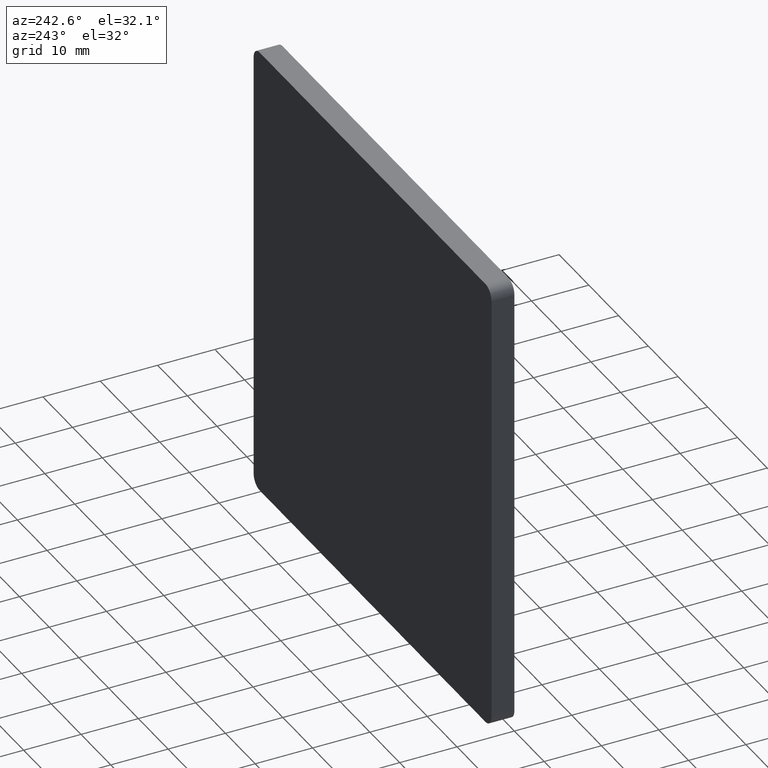
[diagram: clean part render]
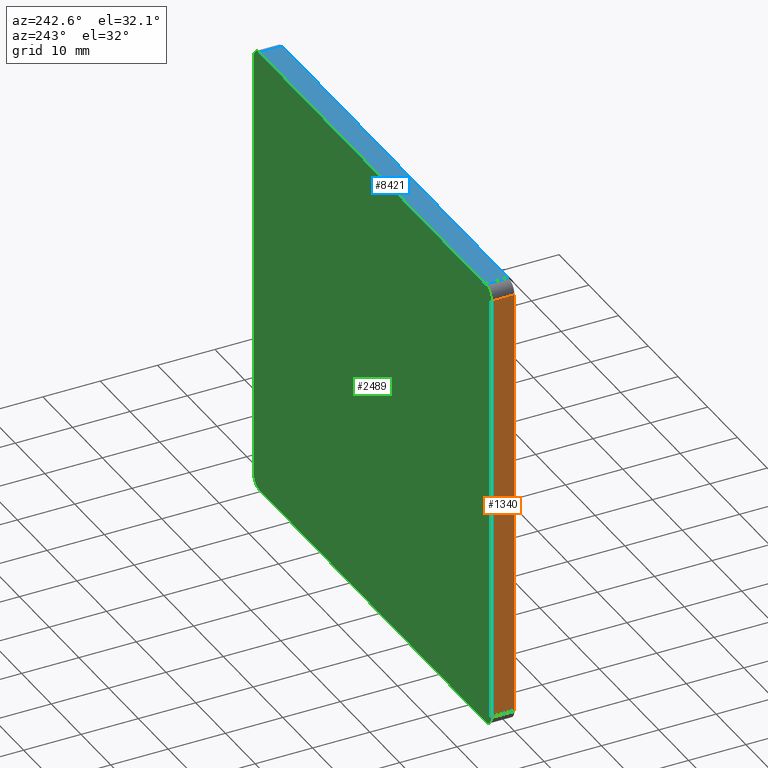
[diagram: same view with three faces highlighted in distinct colors, each labeled with its STEP entity id]
A machine part, auxiliary view with three faces highlighted in distinct colors.
Their STEP definitions:

[orange] entity #1340 — the highlighted planar face has unit normal (1, 0, -0).
#72 = CARTESIAN_POINT ( 'NONE',  ( -39.99999999999997868, 4.000000000000000000, 38.00000000000000711 ) ) ;
#189 = PLANE ( 'NONE',  #8533 ) ;
#317 = LINE ( 'NONE', #1902, #1008 ) ;
#976 = ORIENTED_EDGE ( 'NONE', *, *, #7853, .T. ) ;
#1008 = VECTOR ( 'NONE', #9848, 1000.000000000000000 ) ;
#1081 = VERTEX_POINT ( 'NONE', #13191 ) ;
#1082 = CARTESIAN_POINT ( 'NONE',  ( -39.99999999999997868, 4.000000000000000000, 38.00000000000000711 ) ) ;
#1198 = EDGE_LOOP ( 'NONE', ( #4714, #1815, #976, #10385 ) ) ;
#1316 = CARTESIAN_POINT ( 'NONE',  ( -39.99999999999999289, 4.000000000000000000, -39.99999999999999289 ) ) ;
#1340 = ADVANCED_FACE ( 'NONE', ( #7896 ), #189, .F. ) ;
#1535 = VECTOR ( 'NONE', #1661, 1000.000000000000000 ) ;
#1661 = DIRECTION ( 'NONE',  ( 0.000000000000000000, -1.000000000000000000, 0.000000000000000000 ) ) ;
#1815 = ORIENTED_EDGE ( 'NONE', *, *, #2021, .T. ) ;
#1902 = CARTESIAN_POINT ( 'NONE',  ( -39.99999999999999289, 0.000000000000000000, -39.99999999999999289 ) ) ;
#2021 = EDGE_CURVE ( 'NONE', #1081, #3866, #3277, .T. ) ;
#2045 = VECTOR ( 'NONE', #13874, 1000.000000000000000 ) ;
#2459 = DIRECTION ( 'NONE',  ( -1.734723475976807094E-16, 0.000000000000000000, -1.000000000000000000 ) ) ;
#3253 = VERTEX_POINT ( 'NONE', #1082 ) ;
#3277 = LINE ( 'NONE', #5925, #1535 ) ;
#3607 = VERTEX_POINT ( 'NONE', #4365 ) ;
#3639 = VECTOR ( 'NONE', #4961, 1000.000000000000000 ) ;
#3866 = VERTEX_POINT ( 'NONE', #7058 ) ;
#3868 = CARTESIAN_POINT ( 'NONE',  ( -39.99999999999999289, 4.000000000000000000, -39.99999999999999289 ) ) ;
#4365 = CARTESIAN_POINT ( 'NONE',  ( -39.99999999999997868, 0.000000000000000000, 38.00000000000000711 ) ) ;
#4714 = ORIENTED_EDGE ( 'NONE', *, *, #14029, .F. ) ;
#4961 = DIRECTION ( 'NONE',  ( 1.734723475976807094E-16, 0.000000000000000000, 1.000000000000000000 ) ) ;
#5925 = CARTESIAN_POINT ( 'NONE',  ( -39.99999999999999289, 4.000000000000000000, -37.99999999999999289 ) ) ;
#7058 = CARTESIAN_POINT ( 'NONE',  ( -39.99999999999999289, 0.000000000000000000, -37.99999999999999289 ) ) ;
#7853 = EDGE_CURVE ( 'NONE', #3866, #3607, #317, .T. ) ;
#7896 = FACE_OUTER_BOUND ( 'NONE', #1198, .T. ) ;
#8533 = AXIS2_PLACEMENT_3D ( 'NONE', #1316, #9280, #2459 ) ;
#9280 = DIRECTION ( 'NONE',  ( 1.000000000000000000, 0.000000000000000000, -1.734723475976807094E-16 ) ) ;
#9651 = LINE ( 'NONE', #72, #2045 ) ;
#9848 = DIRECTION ( 'NONE',  ( 1.734723475976807094E-16, 0.000000000000000000, 1.000000000000000000 ) ) ;
#10327 = EDGE_CURVE ( 'NONE', #3607, #3253, #9651, .T. ) ;
#10385 = ORIENTED_EDGE ( 'NONE', *, *, #10327, .T. ) ;
#13191 = CARTESIAN_POINT ( 'NONE',  ( -39.99999999999999289, 4.000000000000000000, -37.99999999999999289 ) ) ;
#13861 = LINE ( 'NONE', #3868, #3639 ) ;
#13874 = DIRECTION ( 'NONE',  ( -0.000000000000000000, 1.000000000000000000, -0.000000000000000000 ) ) ;
#14029 = EDGE_CURVE ( 'NONE', #1081, #3253, #13861, .T. ) ;

[blue] entity #8421 — the highlighted planar face has unit normal (0, 0, -1).
#128 = DIRECTION ( 'NONE',  ( -0.000000000000000000, 1.000000000000000000, -0.000000000000000000 ) ) ;
#594 = DIRECTION ( 'NONE',  ( -1.000000000000000000, 0.000000000000000000, -0.000000000000000000 ) ) ;
#1614 = EDGE_LOOP ( 'NONE', ( #11932, #7902, #12467, #14407 ) ) ;
#1729 = VECTOR ( 'NONE', #4282, 1000.000000000000000 ) ;
#2217 = CARTESIAN_POINT ( 'NONE',  ( -37.99999999999997868, 0.000000000000000000, 40.00000000000000711 ) ) ;
#2668 = DIRECTION ( 'NONE',  ( 0.000000000000000000, 0.000000000000000000, -1.000000000000000000 ) ) ;
#3132 = LINE ( 'NONE', #10517, #3842 ) ;
#3142 = VERTEX_POINT ( 'NONE', #7246 ) ;
#3182 = CARTESIAN_POINT ( 'NONE',  ( 38.00000000000002132, 4.000000000000000000, 40.00000000000000711 ) ) ;
#3554 = DIRECTION ( 'NONE',  ( 0.000000000000000000, -1.000000000000000000, 0.000000000000000000 ) ) ;
#3842 = VECTOR ( 'NONE', #3554, 1000.000000000000000 ) ;
#4005 = DIRECTION ( 'NONE',  ( 1.000000000000000000, 0.000000000000000000, 0.000000000000000000 ) ) ;
#4256 = VERTEX_POINT ( 'NONE', #7248 ) ;
#4282 = DIRECTION ( 'NONE',  ( 1.000000000000000000, 0.000000000000000000, 0.000000000000000000 ) ) ;
#4536 = VERTEX_POINT ( 'NONE', #7155 ) ;
#4924 = LINE ( 'NONE', #9509, #9355 ) ;
#6520 = CARTESIAN_POINT ( 'NONE',  ( -39.99999999999997868, 0.000000000000000000, 40.00000000000000711 ) ) ;
#7155 = CARTESIAN_POINT ( 'NONE',  ( 38.00000000000002132, 0.000000000000000000, 40.00000000000000711 ) ) ;
#7246 = CARTESIAN_POINT ( 'NONE',  ( -37.99999999999997868, 4.000000000000000000, 40.00000000000000711 ) ) ;
#7248 = CARTESIAN_POINT ( 'NONE',  ( 38.00000000000002132, 4.000000000000000000, 40.00000000000000711 ) ) ;
#7470 = AXIS2_PLACEMENT_3D ( 'NONE', #11794, #2668, #594 ) ;
#7902 = ORIENTED_EDGE ( 'NONE', *, *, #8362, .T. ) ;
#8337 = VERTEX_POINT ( 'NONE', #2217 ) ;
#8362 = EDGE_CURVE ( 'NONE', #3142, #8337, #3132, .T. ) ;
#8421 = ADVANCED_FACE ( 'NONE', ( #12472 ), #9443, .F. ) ;
#9355 = VECTOR ( 'NONE', #4005, 1000.000000000000000 ) ;
#9443 = PLANE ( 'NONE',  #7470 ) ;
#9509 = CARTESIAN_POINT ( 'NONE',  ( -39.99999999999997868, 4.000000000000000000, 40.00000000000000711 ) ) ;
#9937 = EDGE_CURVE ( 'NONE', #8337, #4536, #11046, .T. ) ;
#10156 = LINE ( 'NONE', #3182, #12104 ) ;
#10517 = CARTESIAN_POINT ( 'NONE',  ( -37.99999999999997868, 4.000000000000000000, 40.00000000000000711 ) ) ;
#11046 = LINE ( 'NONE', #6520, #1729 ) ;
#11794 = CARTESIAN_POINT ( 'NONE',  ( -39.99999999999997868, 4.000000000000000000, 40.00000000000000711 ) ) ;
#11932 = ORIENTED_EDGE ( 'NONE', *, *, #12014, .F. ) ;
#12014 = EDGE_CURVE ( 'NONE', #3142, #4256, #4924, .T. ) ;
#12104 = VECTOR ( 'NONE', #128, 1000.000000000000000 ) ;
#12467 = ORIENTED_EDGE ( 'NONE', *, *, #9937, .T. ) ;
#12472 = FACE_OUTER_BOUND ( 'NONE', #1614, .T. ) ;
#13750 = EDGE_CURVE ( 'NONE', #4536, #4256, #10156, .T. ) ;
#14407 = ORIENTED_EDGE ( 'NONE', *, *, #13750, .T. ) ;

[green] entity #2489 — the highlighted planar face has unit normal (0, 1, 0).
#274 = EDGE_CURVE ( 'NONE', #9901, #1081, #13172, .T. ) ;
#544 = VERTEX_POINT ( 'NONE', #12971 ) ;
#766 = EDGE_CURVE ( 'NONE', #4066, #544, #12292, .T. ) ;
#829 = DIRECTION ( 'NONE',  ( 0.000000000000000000, 1.000000000000000000, 0.000000000000000000 ) ) ;
#1081 = VERTEX_POINT ( 'NONE', #13191 ) ;
#1082 = CARTESIAN_POINT ( 'NONE',  ( -39.99999999999997868, 4.000000000000000000, 38.00000000000000711 ) ) ;
#1496 = ORIENTED_EDGE ( 'NONE', *, *, #274, .T. ) ;
#1549 = ORIENTED_EDGE ( 'NONE', *, *, #12014, .T. ) ;
#1667 = DIRECTION ( 'NONE',  ( 0.000000000000000000, 1.000000000000000000, 0.000000000000000000 ) ) ;
#2489 = ADVANCED_FACE ( 'NONE', ( #10710 ), #2935, .T. ) ;
#2542 = AXIS2_PLACEMENT_3D ( 'NONE', #14372, #1667, #5053 ) ;
#2935 = PLANE ( 'NONE',  #12807 ) ;
#2968 = VECTOR ( 'NONE', #9932, 1000.000000000000000 ) ;
#3142 = VERTEX_POINT ( 'NONE', #7246 ) ;
#3253 = VERTEX_POINT ( 'NONE', #1082 ) ;
#3409 = CARTESIAN_POINT ( 'NONE',  ( 38.00000000000002132, 4.000000000000000000, -39.99999999999999289 ) ) ;
#3639 = VECTOR ( 'NONE', #4961, 1000.000000000000000 ) ;
#3765 = EDGE_CURVE ( 'NONE', #4256, #4066, #10512, .T. ) ;
#3868 = CARTESIAN_POINT ( 'NONE',  ( -39.99999999999999289, 4.000000000000000000, -39.99999999999999289 ) ) ;
#3920 = DIRECTION ( 'NONE',  ( 0.000000000000000000, -0.000000000000000000, 1.000000000000000000 ) ) ;
#4005 = DIRECTION ( 'NONE',  ( 1.000000000000000000, 0.000000000000000000, 0.000000000000000000 ) ) ;
#4066 = VERTEX_POINT ( 'NONE', #14499 ) ;
#4256 = VERTEX_POINT ( 'NONE', #7248 ) ;
#4517 = CARTESIAN_POINT ( 'NONE',  ( -39.99999999999999289, 4.000000000000000000, -39.99999999999999289 ) ) ;
#4924 = LINE ( 'NONE', #9509, #9355 ) ;
#4961 = DIRECTION ( 'NONE',  ( 1.734723475976807094E-16, 0.000000000000000000, 1.000000000000000000 ) ) ;
#4967 = DIRECTION ( 'NONE',  ( 0.000000000000000000, 1.000000000000000000, 0.000000000000000000 ) ) ;
#5053 = DIRECTION ( 'NONE',  ( 0.000000000000000000, 0.000000000000000000, 1.000000000000000000 ) ) ;
#5549 = DIRECTION ( 'NONE',  ( -1.000000000000000000, -0.000000000000000000, -0.000000000000000000 ) ) ;
#7212 = CIRCLE ( 'NONE', #9761, 2.000000000000001776 ) ;
#7246 = CARTESIAN_POINT ( 'NONE',  ( -37.99999999999997868, 4.000000000000000000, 40.00000000000000711 ) ) ;
#7248 = CARTESIAN_POINT ( 'NONE',  ( 38.00000000000002132, 4.000000000000000000, 40.00000000000000711 ) ) ;
#7356 = ORIENTED_EDGE ( 'NONE', *, *, #766, .T. ) ;
#8370 = DIRECTION ( 'NONE',  ( 0.000000000000000000, 1.000000000000000000, 0.000000000000000000 ) ) ;
#8442 = CIRCLE ( 'NONE', #9740, 2.000000000000001776 ) ;
#8555 = EDGE_CURVE ( 'NONE', #544, #9571, #8442, .T. ) ;
#8833 = LINE ( 'NONE', #4517, #12510 ) ;
#9355 = VECTOR ( 'NONE', #4005, 1000.000000000000000 ) ;
#9509 = CARTESIAN_POINT ( 'NONE',  ( -39.99999999999997868, 4.000000000000000000, 40.00000000000000711 ) ) ;
#9571 = VERTEX_POINT ( 'NONE', #3409 ) ;
#9740 = AXIS2_PLACEMENT_3D ( 'NONE', #14282, #829, #13057 ) ;
#9761 = AXIS2_PLACEMENT_3D ( 'NONE', #12818, #8370, #10583 ) ;
#9884 = CARTESIAN_POINT ( 'NONE',  ( 40.00000000000001421, 4.000000000000000000, -39.99999999999999289 ) ) ;
#9901 = VERTEX_POINT ( 'NONE', #14194 ) ;
#9932 = DIRECTION ( 'NONE',  ( -8.673617379884035472E-17, -0.000000000000000000, -1.000000000000000000 ) ) ;
#10512 = CIRCLE ( 'NONE', #12319, 2.000000000000001776 ) ;
#10583 = DIRECTION ( 'NONE',  ( 0.000000000000000000, 0.000000000000000000, 1.000000000000000000 ) ) ;
#10710 = FACE_OUTER_BOUND ( 'NONE', #10939, .T. ) ;
#10939 = EDGE_LOOP ( 'NONE', ( #7356, #13557, #11694, #1496, #13515, #11467, #1549, #14326 ) ) ;
#11467 = ORIENTED_EDGE ( 'NONE', *, *, #13144, .T. ) ;
#11694 = ORIENTED_EDGE ( 'NONE', *, *, #12269, .T. ) ;
#11780 = DIRECTION ( 'NONE',  ( 0.000000000000000000, 0.000000000000000000, 1.000000000000000000 ) ) ;
#12014 = EDGE_CURVE ( 'NONE', #3142, #4256, #4924, .T. ) ;
#12269 = EDGE_CURVE ( 'NONE', #9571, #9901, #8833, .T. ) ;
#12292 = LINE ( 'NONE', #9884, #2968 ) ;
#12319 = AXIS2_PLACEMENT_3D ( 'NONE', #13788, #4967, #11780 ) ;
#12510 = VECTOR ( 'NONE', #5549, 1000.000000000000000 ) ;
#12807 = AXIS2_PLACEMENT_3D ( 'NONE', #13084, #14211, #3920 ) ;
#12818 = CARTESIAN_POINT ( 'NONE',  ( -37.99999999999997868, 4.000000000000000000, 38.00000000000000711 ) ) ;
#12971 = CARTESIAN_POINT ( 'NONE',  ( 40.00000000000001421, 4.000000000000000000, -37.99999999999999289 ) ) ;
#13057 = DIRECTION ( 'NONE',  ( 0.000000000000000000, 0.000000000000000000, 1.000000000000000000 ) ) ;
#13084 = CARTESIAN_POINT ( 'NONE',  ( 0.000000000000000000, 4.000000000000000000, 0.000000000000000000 ) ) ;
#13144 = EDGE_CURVE ( 'NONE', #3253, #3142, #7212, .T. ) ;
#13172 = CIRCLE ( 'NONE', #2542, 2.000000000000001776 ) ;
#13191 = CARTESIAN_POINT ( 'NONE',  ( -39.99999999999999289, 4.000000000000000000, -37.99999999999999289 ) ) ;
#13515 = ORIENTED_EDGE ( 'NONE', *, *, #14029, .T. ) ;
#13557 = ORIENTED_EDGE ( 'NONE', *, *, #8555, .T. ) ;
#13788 = CARTESIAN_POINT ( 'NONE',  ( 38.00000000000002132, 4.000000000000000000, 38.00000000000000711 ) ) ;
#13861 = LINE ( 'NONE', #3868, #3639 ) ;
#14029 = EDGE_CURVE ( 'NONE', #1081, #3253, #13861, .T. ) ;
#14194 = CARTESIAN_POINT ( 'NONE',  ( -37.99999999999999289, 4.000000000000000000, -39.99999999999999289 ) ) ;
#14211 = DIRECTION ( 'NONE',  ( 0.000000000000000000, 1.000000000000000000, 0.000000000000000000 ) ) ;
#14282 = CARTESIAN_POINT ( 'NONE',  ( 38.00000000000002132, 4.000000000000000000, -37.99999999999999289 ) ) ;
#14326 = ORIENTED_EDGE ( 'NONE', *, *, #3765, .T. ) ;
#14372 = CARTESIAN_POINT ( 'NONE',  ( -37.99999999999999289, 4.000000000000000000, -37.99999999999999289 ) ) ;
#14499 = CARTESIAN_POINT ( 'NONE',  ( 40.00000000000002132, 4.000000000000000000, 38.00000000000000711 ) ) ;